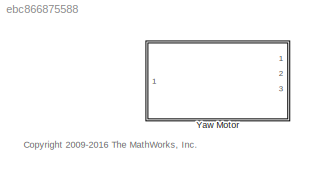
MODEL slx_ebc866875588
KIND library
CONFIG AbsTol = auto
CONFIG EnableMultiTasking = on
CONFIG FixedStep = auto
CONFIG MaxStep = auto
CONFIG MinStep = auto
CONFIG RelTol = 1e-3
CONFIG SampleTimeConstraint = Unconstrained
CONFIG Solver = ode45
CONFIG SolverName = ode45
CONFIG StartTime = 0.0
CONFIG StopTime = 10.0
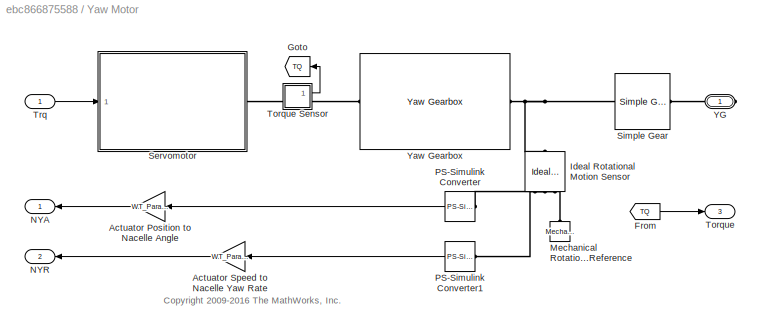
BLOCK [SubSystem] Yaw Motor
  Ports = [1, 3, 0, 0, 0, 0, 1]
  RequestExecContextInheritance = off
  Variant = off
BLOCK [Gain] Yaw Motor/Actuator Position to Nacelle Angle
  Gain = WT_Params.Yaw_Actuator.yaw_gear_diameter/WT_Params.Yaw_Actuator.yaw_ring_diameter
  OutDataTypeStr = Inherit: Inherit via internal rule
  ParamDataTypeStr = Inherit: Inherit via internal rule
  SaturateOnIntegerOverflow = off
BLOCK [Gain] Yaw Motor/Actuator Speed to Nacelle Yaw Rate
  Gain = WT_Params.Yaw_Actuator.yaw_gear_diameter/WT_Params.Yaw_Actuator.yaw_ring_diameter
  OutDataTypeStr = Inherit: Inherit via internal rule
  ParamDataTypeStr = Inherit: Inherit via internal rule
  SaturateOnIntegerOverflow = off
BLOCK [From] Yaw Motor/From
  CloseFcn = tagdialog Close
  GotoTag = TQ
BLOCK [Goto] Yaw Motor/Goto
  GotoTag = TQ
BLOCK [Reference] Yaw Motor/Ideal Rotational Motion Sensor  REF=fl_lib/Mechanical/Mechanical Sensors/Ideal Rotational
Motion Sensor
  Ports = [0, 0, 0, 0, 0, 1, 3]
  SourceBlock = fl_lib/Mechanical/Mechanical Sensors/Ideal Rotational\nMotion Sensor
  SourceType = Ideal Rotational\nMotion Sensor
BLOCK [Reference] Yaw Motor/Mechanical Rotational Reference  REF=fl_lib/Mechanical/Rotational Elements/Mechanical
Rotational Reference
  Ports = [0, 0, 0, 0, 0, 1]
  SourceBlock = fl_lib/Mechanical/Rotational Elements/Mechanical\nRotational Reference
  SourceType = Mechanical\nRotational Reference
BLOCK [Outport] Yaw Motor/NYA
  IconDisplay = Port number
BLOCK [Outport] Yaw Motor/NYR
  IconDisplay = Port number
  Port = 2
BLOCK [Reference] Yaw Motor/PS-Simulink Converter  REF=nesl_utility/PS-Simulink
Converter
  Ports = [0, 1, 0, 0, 0, 1]
  SourceBlock = nesl_utility/PS-Simulink\nConverter
  SourceType = PS-Simulink\nConverter
BLOCK [Reference] Yaw Motor/PS-Simulink Converter1  REF=nesl_utility/PS-Simulink
Converter
  Ports = [0, 1, 0, 0, 0, 1]
  SourceBlock = nesl_utility/PS-Simulink\nConverter
  SourceType = PS-Simulink\nConverter
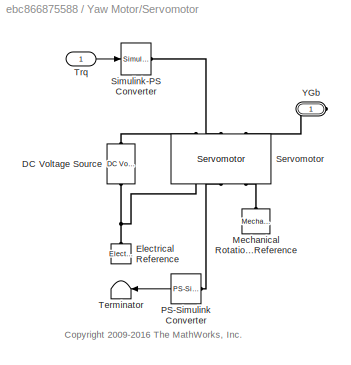
BLOCK [SubSystem] Yaw Motor/Servomotor
  Ports = [1, 0, 0, 0, 0, 0, 1]
  RequestExecContextInheritance = off
  ShowPortLabels = FromPortBlockName
  Variant = off
BLOCK [Reference] Yaw Motor/Servomotor/DC Voltage Source  REF=fl_lib/Electrical/Electrical Sources/DC Voltage Source
  Ports = [0, 0, 0, 0, 0, 1, 1]
  SourceBlock = fl_lib/Electrical/Electrical Sources/DC Voltage Source
  SourceType = DC Voltage Source
BLOCK [Reference] Yaw Motor/Servomotor/Electrical Reference  REF=fl_lib/Electrical/Electrical Elements/Electrical Reference
  Ports = [0, 0, 0, 0, 0, 1]
  SourceBlock = fl_lib/Electrical/Electrical Elements/Electrical Reference
  SourceType = Electrical Reference
BLOCK [Reference] Yaw Motor/Servomotor/Mechanical Rotational Reference  REF=fl_lib/Mechanical/Rotational Elements/Mechanical
Rotational Reference
  Ports = [0, 0, 0, 0, 0, 1]
  SourceBlock = fl_lib/Mechanical/Rotational Elements/Mechanical\nRotational Reference
  SourceType = Mechanical\nRotational Reference
BLOCK [Reference] Yaw Motor/Servomotor/PS-Simulink Converter  REF=nesl_utility/PS-Simulink
Converter
  Ports = [0, 1, 0, 0, 0, 1]
  SourceBlock = nesl_utility/PS-Simulink\nConverter
  SourceType = PS-Simulink\nConverter
BLOCK [Reference] Yaw Motor/Servomotor/Servomotor  REF=elec_lib/Actuators & Drivers/Rotational Actuators/Servomotor
  Ports = [0, 0, 0, 0, 0, 3, 3]
  SourceBlock = elec_lib/Actuators & Drivers/Rotational Actuators/Servomotor
  SourceType = Servomotor
BLOCK [Reference] Yaw Motor/Servomotor/Simulink-PS Converter  REF=nesl_utility/Simulink-PS
Converter
  Ports = [1, 0, 0, 0, 0, 0, 1]
  SourceBlock = nesl_utility/Simulink-PS\nConverter
  SourceType = Simulink-PS\nConverter
BLOCK [Terminator] Yaw Motor/Servomotor/Terminator
BLOCK [Inport] Yaw Motor/Servomotor/Trq
  IconDisplay = Port number
BLOCK [PMIOPort] Yaw Motor/Servomotor/YGb
  Port = 1
  Side = Right
BLOCK [Reference] Yaw Motor/Simple Gear  REF=sdl_lib/Gears/Simple Gear
  Ports = [0, 0, 0, 0, 0, 1, 1]
  SourceBlock = sdl_lib/Gears/Simple Gear
  SourceType = Simple Gear
BLOCK [Outport] Yaw Motor/Torque
  IconDisplay = Port number
  Port = 3
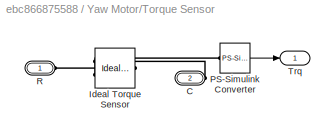
BLOCK [SubSystem] Yaw Motor/Torque Sensor
  Ports = [0, 1, 0, 0, 0, 1, 1]
  RequestExecContextInheritance = off
  Variant = off
BLOCK [PMIOPort] Yaw Motor/Torque Sensor/C
  Port = 2
  Side = Right
BLOCK [Reference] Yaw Motor/Torque Sensor/Ideal Torque Sensor  REF=fl_lib/Mechanical/Mechanical Sensors/Ideal Torque Sensor
  Ports = [0, 0, 0, 0, 0, 1, 2]
  SourceBlock = fl_lib/Mechanical/Mechanical Sensors/Ideal Torque Sensor
  SourceType = Ideal Torque Sensor
BLOCK [Reference] Yaw Motor/Torque Sensor/PS-Simulink Converter  REF=nesl_utility/PS-Simulink
Converter
  Ports = [0, 1, 0, 0, 0, 1]
  SourceBlock = nesl_utility/PS-Simulink\nConverter
  SourceType = PS-Simulink\nConverter
BLOCK [PMIOPort] Yaw Motor/Torque Sensor/R
  Port = 1
  Side = Left
BLOCK [Outport] Yaw Motor/Torque Sensor/Trq
  IconDisplay = Port number
BLOCK [Inport] Yaw Motor/Trq
  IconDisplay = Port number
BLOCK [PMIOPort] Yaw Motor/YG
  Port = 1
  Side = Right
BLOCK [Reference] Yaw Motor/Yaw Gearbox  REF=Yaw_Gearbox_Lib/Yaw Gearbox
  Ports = [0, 0, 0, 0, 0, 1, 1]
  SourceBlock = Yaw_Gearbox_Lib/Yaw Gearbox
ANNOTATION (root): <copyright redacted>
ANNOTATION Yaw Motor: <copyright redacted>
ANNOTATION Yaw Motor/Servomotor: <copyright redacted>
LINE Yaw Motor/Actuator Position to Nacelle Angle:1 -> Yaw Motor/NYA:1
LINE Yaw Motor/Actuator Speed to Nacelle Yaw Rate:1 -> Yaw Motor/NYR:1
LINE Yaw Motor/From:1 -> Yaw Motor/Torque:1
LINE Yaw Motor/PS-Simulink Converter1:1 -> Yaw Motor/Actuator Speed to Nacelle Yaw Rate:1
LINE Yaw Motor/PS-Simulink Converter:1 -> Yaw Motor/Actuator Position to Nacelle Angle:1
LINE Yaw Motor/Servomotor/PS-Simulink Converter:1 -> Yaw Motor/Servomotor/Terminator:1
LINE Yaw Motor/Servomotor/Trq:1 -> Yaw Motor/Servomotor/Simulink-PS Converter:1
LINE Yaw Motor/Torque Sensor/PS-Simulink Converter:1 -> Yaw Motor/Torque Sensor/Trq:1
LINE Yaw Motor/Torque Sensor:1 -> Yaw Motor/Goto:1
LINE Yaw Motor/Trq:1 -> Yaw Motor/Servomotor:1
PNET net1: Yaw Motor/Ideal Rotational Motion Sensor:LConn1 -- Yaw Motor/Simple Gear:LConn1 -- Yaw Motor/Yaw Gearbox:RConn1
PLINE Yaw Motor/Ideal Rotational Motion Sensor:RConn1 -- Yaw Motor/Mechanical Rotational Reference:LConn1
PLINE Yaw Motor/Ideal Rotational Motion Sensor:RConn2 -- Yaw Motor/PS-Simulink Converter1:LConn1
PLINE Yaw Motor/Ideal Rotational Motion Sensor:RConn3 -- Yaw Motor/PS-Simulink Converter:LConn1
PLINE Yaw Motor/Servomotor/DC Voltage Source:LConn1 -- Yaw Motor/Servomotor/Servomotor:LConn1
PNET net2: Yaw Motor/Servomotor/DC Voltage Source:RConn1 -- Yaw Motor/Servomotor/Electrical Reference:LConn1 -- Yaw Motor/Servomotor/Servomotor:RConn1
PLINE Yaw Motor/Servomotor/Mechanical Rotational Reference:LConn1 -- Yaw Motor/Servomotor/Servomotor:RConn3
PLINE Yaw Motor/Servomotor/PS-Simulink Converter:LConn1 -- Yaw Motor/Servomotor/Servomotor:RConn2
PLINE Yaw Motor/Servomotor/Servomotor:LConn2 -- Yaw Motor/Servomotor/Simulink-PS Converter:RConn1
PLINE Yaw Motor/Servomotor/Servomotor:LConn3 -- Yaw Motor/Servomotor/YGb:RConn1
PLINE Yaw Motor/Servomotor:RConn1 -- Yaw Motor/Torque Sensor:LConn1
PLINE Yaw Motor/Simple Gear:RConn1 -- Yaw Motor/YG:RConn1
PLINE Yaw Motor/Torque Sensor/C:RConn1 -- Yaw Motor/Torque Sensor/Ideal Torque Sensor:RConn1
PLINE Yaw Motor/Torque Sensor/Ideal Torque Sensor:LConn1 -- Yaw Motor/Torque Sensor/R:RConn1
PLINE Yaw Motor/Torque Sensor/Ideal Torque Sensor:RConn2 -- Yaw Motor/Torque Sensor/PS-Simulink Converter:LConn1
PLINE Yaw Motor/Torque Sensor:RConn1 -- Yaw Motor/Yaw Gearbox:LConn1
note: PNET lines group multi-terminal physical nets as a canonical sorted terminal list (undirected conserving connections); 2-terminal nets keep the pairwise PLINE form
